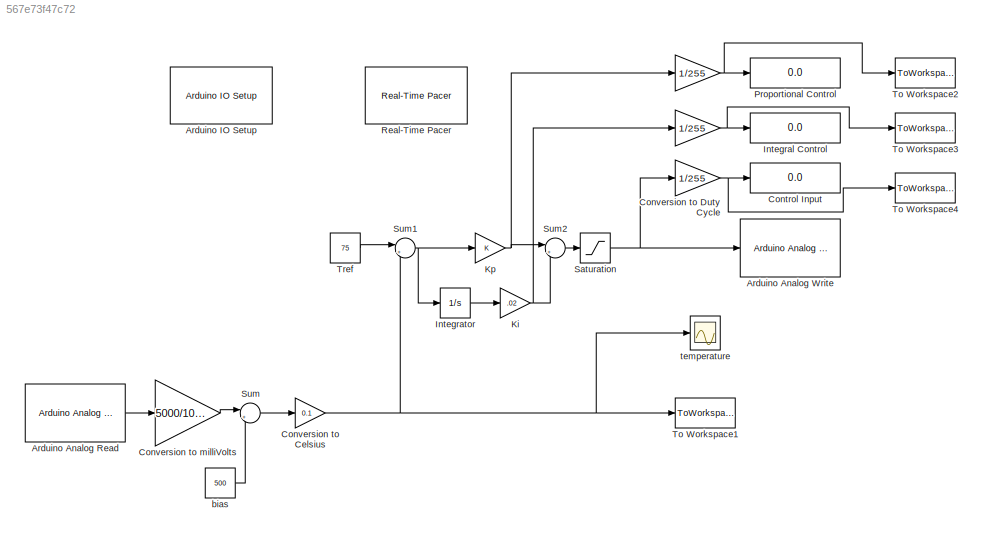
MODEL slx_567e73f47c72
KIND model
BLOCK [Gain]  
  Gain = 1/255
  OutDataTypeStr = Inherit: Inherit via internal rule
  ParamDataTypeStr = Inherit: Inherit via internal rule
  SaturateOnIntegerOverflow = off
BLOCK [Gain]   
  Gain = 1/255
  OutDataTypeStr = Inherit: Inherit via internal rule
  ParamDataTypeStr = Inherit: Inherit via internal rule
  SaturateOnIntegerOverflow = off
BLOCK [Reference] Arduino Analog Read  REF=arduino_io_lib/Arduino Analog Read
  Ports = [0, 1]
  SourceBlock = arduino_io_lib/Arduino Analog Read
  SourceType = Arduino IO Analog Read
  T = 0.1
  arduinoPin = 0
  arduinoVar = Temporary arduino variable: Arduino1
BLOCK [Reference] Arduino Analog Write  REF=arduino_io_lib/Arduino Analog Write
  Ports = [1]
  SourceBlock = arduino_io_lib/Arduino Analog Write
  SourceType = Arduino IO analog Write (PWM)
  T = 0.1
  arduinoPin = 9
  arduinoVar = Temporary arduino variable: Arduino1
BLOCK [Reference] Arduino IO Setup  REF=arduino_io_lib/Arduino IO Setup
  Ports = []
  Priority = 3
  SourceBlock = arduino_io_lib/Arduino IO Setup
  SourceType = Arduino IO Setup
  arduinoVar = Temporary arduino variable: Arduino1
  comPort = COM3
  workspaceVarName = b
BLOCK [Display] Control Input
  Decimation = 1
  Ports = [1]
BLOCK [Gain] Conversion to Celsius
  Gain = 0.1
  OutDataTypeStr = Inherit: Inherit via internal rule
  ParamDataTypeStr = Inherit: Inherit via internal rule
  SaturateOnIntegerOverflow = off
BLOCK [Gain] Conversion to Duty Cycle
  Gain = 1/255
  OutDataTypeStr = Inherit: Inherit via internal rule
  ParamDataTypeStr = Inherit: Inherit via internal rule
  SaturateOnIntegerOverflow = off
BLOCK [Gain] Conversion to milliVolts
  Gain = 5000/1023
  OutDataTypeStr = Inherit: Inherit via internal rule
  ParamDataTypeStr = Inherit: Inherit via internal rule
  SaturateOnIntegerOverflow = off
BLOCK [Display] Integral Control
  Decimation = 1
  Ports = [1]
BLOCK [Integrator] Integrator
  Ports = [1, 1]
BLOCK [Gain] Ki
  Gain = .02
  OutDataTypeStr = Inherit: Inherit via internal rule
  ParamDataTypeStr = Inherit: Inherit via internal rule
  SaturateOnIntegerOverflow = off
BLOCK [Gain] Kp
  OutDataTypeStr = Inherit: Inherit via internal rule
  ParamDataTypeStr = Inherit: Inherit via internal rule
  SaturateOnIntegerOverflow = off
BLOCK [Display] Proportional Control
  Decimation = 1
  Ports = [1]
BLOCK [Reference] Real-Time Pacer  REF=arduino_io_lib/Real-Time Pacer
  Ports = []
  SourceBlock = arduino_io_lib/Real-Time Pacer
  SourceType = RealTime_Pacer
  simTimePerRealTime = 1
BLOCK [Saturate] Saturation
  InputPortMap = u0
  LowerLimit = 0
  Ports = [1, 1]
  UpperLimit = 255
BLOCK [Sum] Sum
  IconShape = round
  InputSameDT = off
  Inputs = |+-
  OutDataTypeStr = Inherit: Inherit via internal rule
  Ports = [2, 1]
  SaturateOnIntegerOverflow = off
BLOCK [Sum] Sum1
  IconShape = round
  InputSameDT = off
  Inputs = |+-
  OutDataTypeStr = Inherit: Inherit via internal rule
  Ports = [2, 1]
  SaturateOnIntegerOverflow = off
BLOCK [Sum] Sum2
  IconShape = round
  InputSameDT = off
  Inputs = |++
  OutDataTypeStr = Inherit: Inherit via internal rule
  Ports = [2, 1]
  SaturateOnIntegerOverflow = off
BLOCK [ToWorkspace] To Workspace1
  MaxDataPoints = inf
  Ports = [1]
  SampleTime = -1
  SaveFormat = Timeseries
  VariableName = temp
BLOCK [ToWorkspace] To Workspace2
  MaxDataPoints = inf
  Ports = [1]
  SampleTime = -1
  SaveFormat = Timeseries
  VariableName = u_p
BLOCK [ToWorkspace] To Workspace3
  MaxDataPoints = inf
  Ports = [1]
  SampleTime = -1
  SaveFormat = Timeseries
  VariableName = u_i
BLOCK [ToWorkspace] To Workspace4
  MaxDataPoints = inf
  Ports = [1]
  SampleTime = -1
  SaveFormat = Timeseries
  VariableName = u
BLOCK [Constant] Tref
  Value = 75
BLOCK [Constant] bias
  Value = 500
BLOCK [Scope] temperature
  DataFormat = StructureWithTime
  Floating = off
  NumInputPorts = 1
  Ports = [1]
  SampleTime = 0
  ShowLegends = off
  YMax = 120
  YMin = 15
  ZoomMode = xonly
NET   :1 -> Proportional Control:1, To Workspace2:1
NET  :1 -> Integral Control:1, To Workspace3:1
LINE Arduino Analog Read:1 -> Conversion to milliVolts:1
NET Conversion to Celsius:1 -> Sum1:2, To Workspace1:1, temperature:1
NET Conversion to Duty Cycle:1 -> Control Input:1, To Workspace4:1
LINE Conversion to milliVolts:1 -> Sum:1
LINE Integrator:1 -> Ki:1
NET Ki:1 ->  :1, Sum2:2
NET Kp:1 ->   :1, Sum2:1
NET Saturation:1 -> Arduino Analog Write:1, Conversion to Duty Cycle:1
NET Sum1:1 -> Integrator:1, Kp:1
LINE Sum2:1 -> Saturation:1
LINE Sum:1 -> Conversion to Celsius:1
LINE Tref:1 -> Sum1:1
LINE bias:1 -> Sum:2
note: NET lines group one-source signal fan-out (src -> all destinations, sorted); 1:1 wires keep LINE
